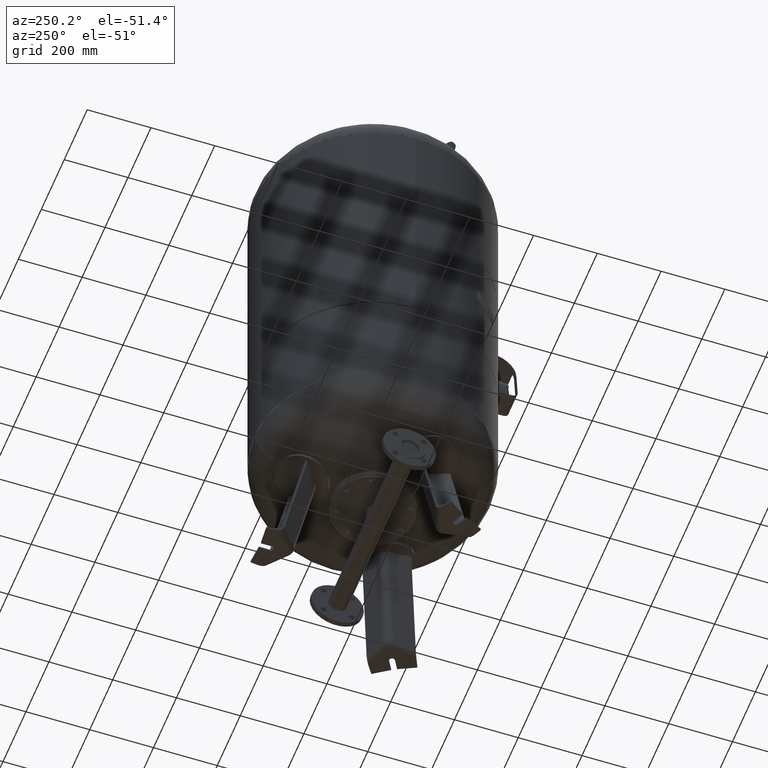
[diagram: clean part render]
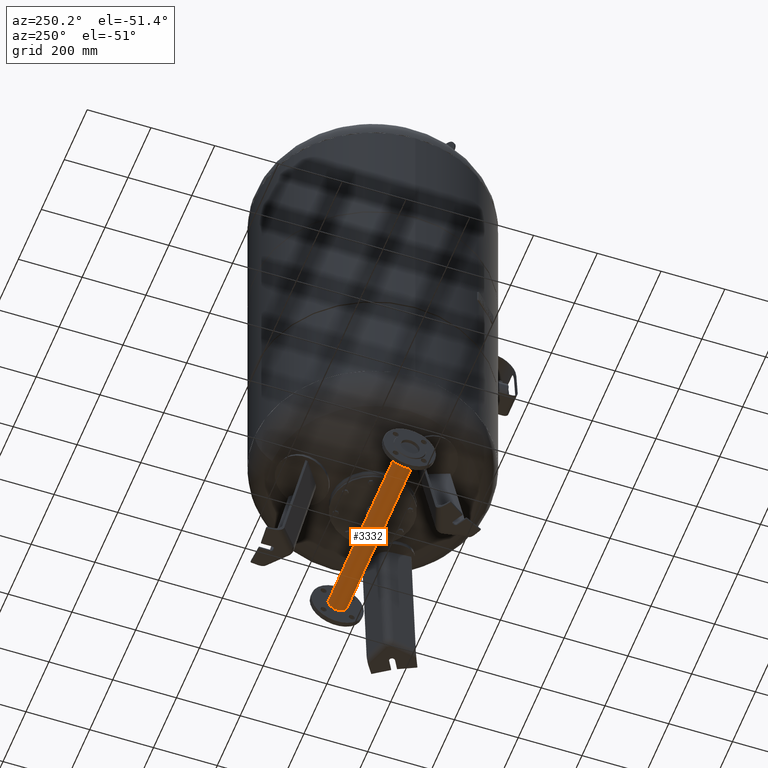
[diagram: same view with one face highlighted and labeled with its STEP entity id]
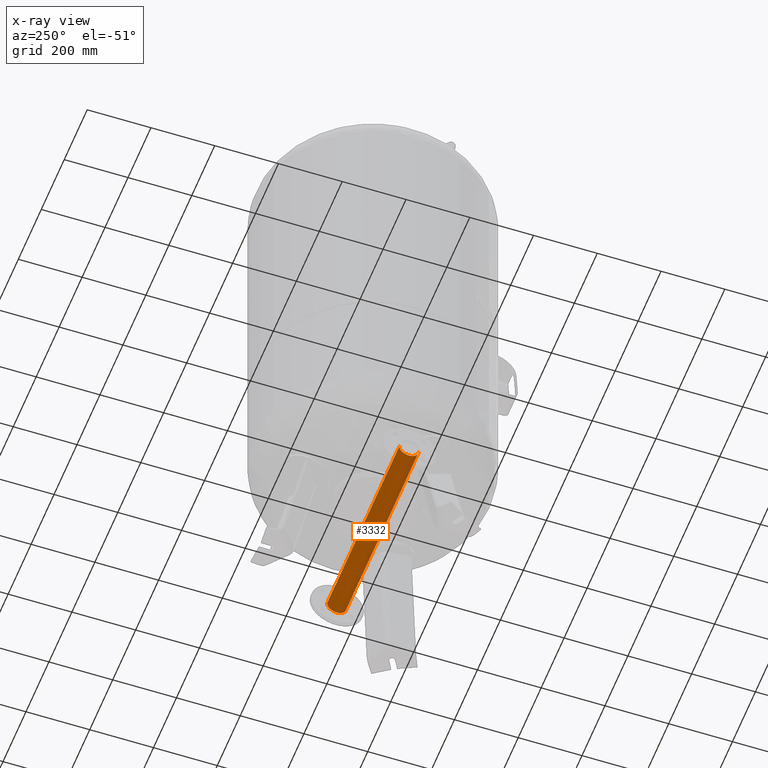
[diagram: x-ray of the same camera — body ghosted, the highlighted face saturated]
A machine part, auxiliary view. The second image highlights one B-rep face of the part: STEP entity #3332.
The next image is the same camera in x-ray: the body ghosted, the highlighted face saturated — about 0% of this face is hidden behind the body in this view.
In plain terms, the highlighted face is a freeform B-spline surface patch.
Its self-contained STEP definition (entity closure, byte-faithful):
#3061=CARTESIAN_POINT('',(315.0,-30.149999999999999,235.0));
#3062=VERTEX_POINT('',#3061);
#3063=CARTESIAN_POINT('',(-315.0,-30.149999999999999,235.0));
#3064=VERTEX_POINT('',#3063);
#3065=CARTESIAN_POINT('',(315.0,-30.149999999999999,235.0));
#3066=DIRECTION('',(-1.0,0.0,0.0));
#3067=VECTOR('',#3066,630.0);
#3068=LINE('',#3065,#3067);
#3069=EDGE_CURVE('',#3062,#3064,#3068,.T.);
#3071=CARTESIAN_POINT('',(315.0,30.149999999999999,235.0));
#3072=VERTEX_POINT('',#3071);
#3080=CARTESIAN_POINT('',(-315.0,30.149999999999999,235.0));
#3081=VERTEX_POINT('',#3080);
#3082=CARTESIAN_POINT('',(315.0,30.149999999999999,235.0));
#3083=DIRECTION('',(-1.0,0.0,0.0));
#3084=VECTOR('',#3083,630.0);
#3085=LINE('',#3082,#3084);
#3086=EDGE_CURVE('',#3072,#3081,#3085,.T.);
#3255=CARTESIAN_POINT('',(-315.0,0.0,235.0));
#3256=DIRECTION('',(-1.0,0.0,0.0));
#3257=DIRECTION('',(0.0,-1.0,0.0));
#3258=AXIS2_PLACEMENT_3D('',#3255,#3256,#3257);
#3259=CIRCLE('',#3258,30.149999999999999);
#3260=EDGE_CURVE('',#3081,#3064,#3259,.T.);
#3294=CARTESIAN_POINT('',(-315.0,30.149999999999999,235.0));
#3295=CARTESIAN_POINT('',(315.0,30.149999999999999,235.0));
#3296=CARTESIAN_POINT('',(-315.0,30.149999999999991,204.850000000000020));
#3297=CARTESIAN_POINT('',(315.0,30.149999999999991,204.850000000000020));
#3298=CARTESIAN_POINT('',(-315.0,0.0,204.849999999999990));
#3299=CARTESIAN_POINT('',(315.0,0.0,204.849999999999990));
#3300=CARTESIAN_POINT('',(-315.0,-30.149999999999991,204.850000000000020));
#3301=CARTESIAN_POINT('',(315.0,-30.149999999999991,204.850000000000020));
#3302=CARTESIAN_POINT('',(-315.0,-30.149999999999999,235.0));
#3303=CARTESIAN_POINT('',(315.0,-30.149999999999999,235.0));
#3304=CARTESIAN_POINT('',(-315.0,-30.149999999999991,265.149999999999980));
#3305=CARTESIAN_POINT('',(315.0,-30.149999999999991,265.149999999999980));
#3306=CARTESIAN_POINT('',(-315.0,0.0,265.149999999999980));
#3307=CARTESIAN_POINT('',(315.0,0.0,265.149999999999980));
#3308=CARTESIAN_POINT('',(-315.0,30.149999999999991,265.149999999999980));
#3309=CARTESIAN_POINT('',(315.0,30.149999999999991,265.149999999999980));
#3310=CARTESIAN_POINT('',(-315.0,30.149999999999999,235.0));
#3311=CARTESIAN_POINT('',(315.0,30.149999999999999,235.0));
#3319=(BOUNDED_SURFACE()B_SPLINE_SURFACE(1,2,((#3294,#3296,#3298,#3300,#3302,#3304,#3306,#3308,#3310),(#3295,#3297,#3299,#3301,#3303,#3305,#3307,#3309,#3311)),.UNSPECIFIED.,.F.,.T.,.U.)B_SPLINE_SURFACE_WITH_KNOTS((2,2),(3,2,2,2,3),(-20.480928689883914,0.414593698175789),(0.0,47.359509252866125,94.719018505732251,142.078527758598400,189.438037011464500),.UNSPECIFIED.)GEOMETRIC_REPRESENTATION_ITEM()RATIONAL_B_SPLINE_SURFACE(((1.0,0.707106781186548,1.0,0.707106781186548,1.0,0.707106781186548,1.0,0.707106781186548,1.0),(1.0,0.707106781186548,1.0,0.707106781186548,1.0,0.707106781186548,1.0,0.707106781186548,1.0)))REPRESENTATION_ITEM('')SURFACE());
#3320=ORIENTED_EDGE('',*,*,#3069,.T.);
#3321=ORIENTED_EDGE('',*,*,#3260,.F.);
#3322=ORIENTED_EDGE('',*,*,#3086,.F.);
#3323=CARTESIAN_POINT('',(315.0,0.0,235.0));
#3324=DIRECTION('',(-1.0,0.0,0.0));
#3325=DIRECTION('',(0.0,-1.0,0.0));
#3326=AXIS2_PLACEMENT_3D('',#3323,#3324,#3325);
#3327=CIRCLE('',#3326,30.149999999999999);
#3328=EDGE_CURVE('',#3072,#3062,#3327,.T.);
#3329=ORIENTED_EDGE('',*,*,#3328,.T.);
#3330=EDGE_LOOP('',(#3320,#3321,#3322,#3329));
#3331=FACE_OUTER_BOUND('',#3330,.T.);
#3332=ADVANCED_FACE('',(#3331),#3319,.T.);